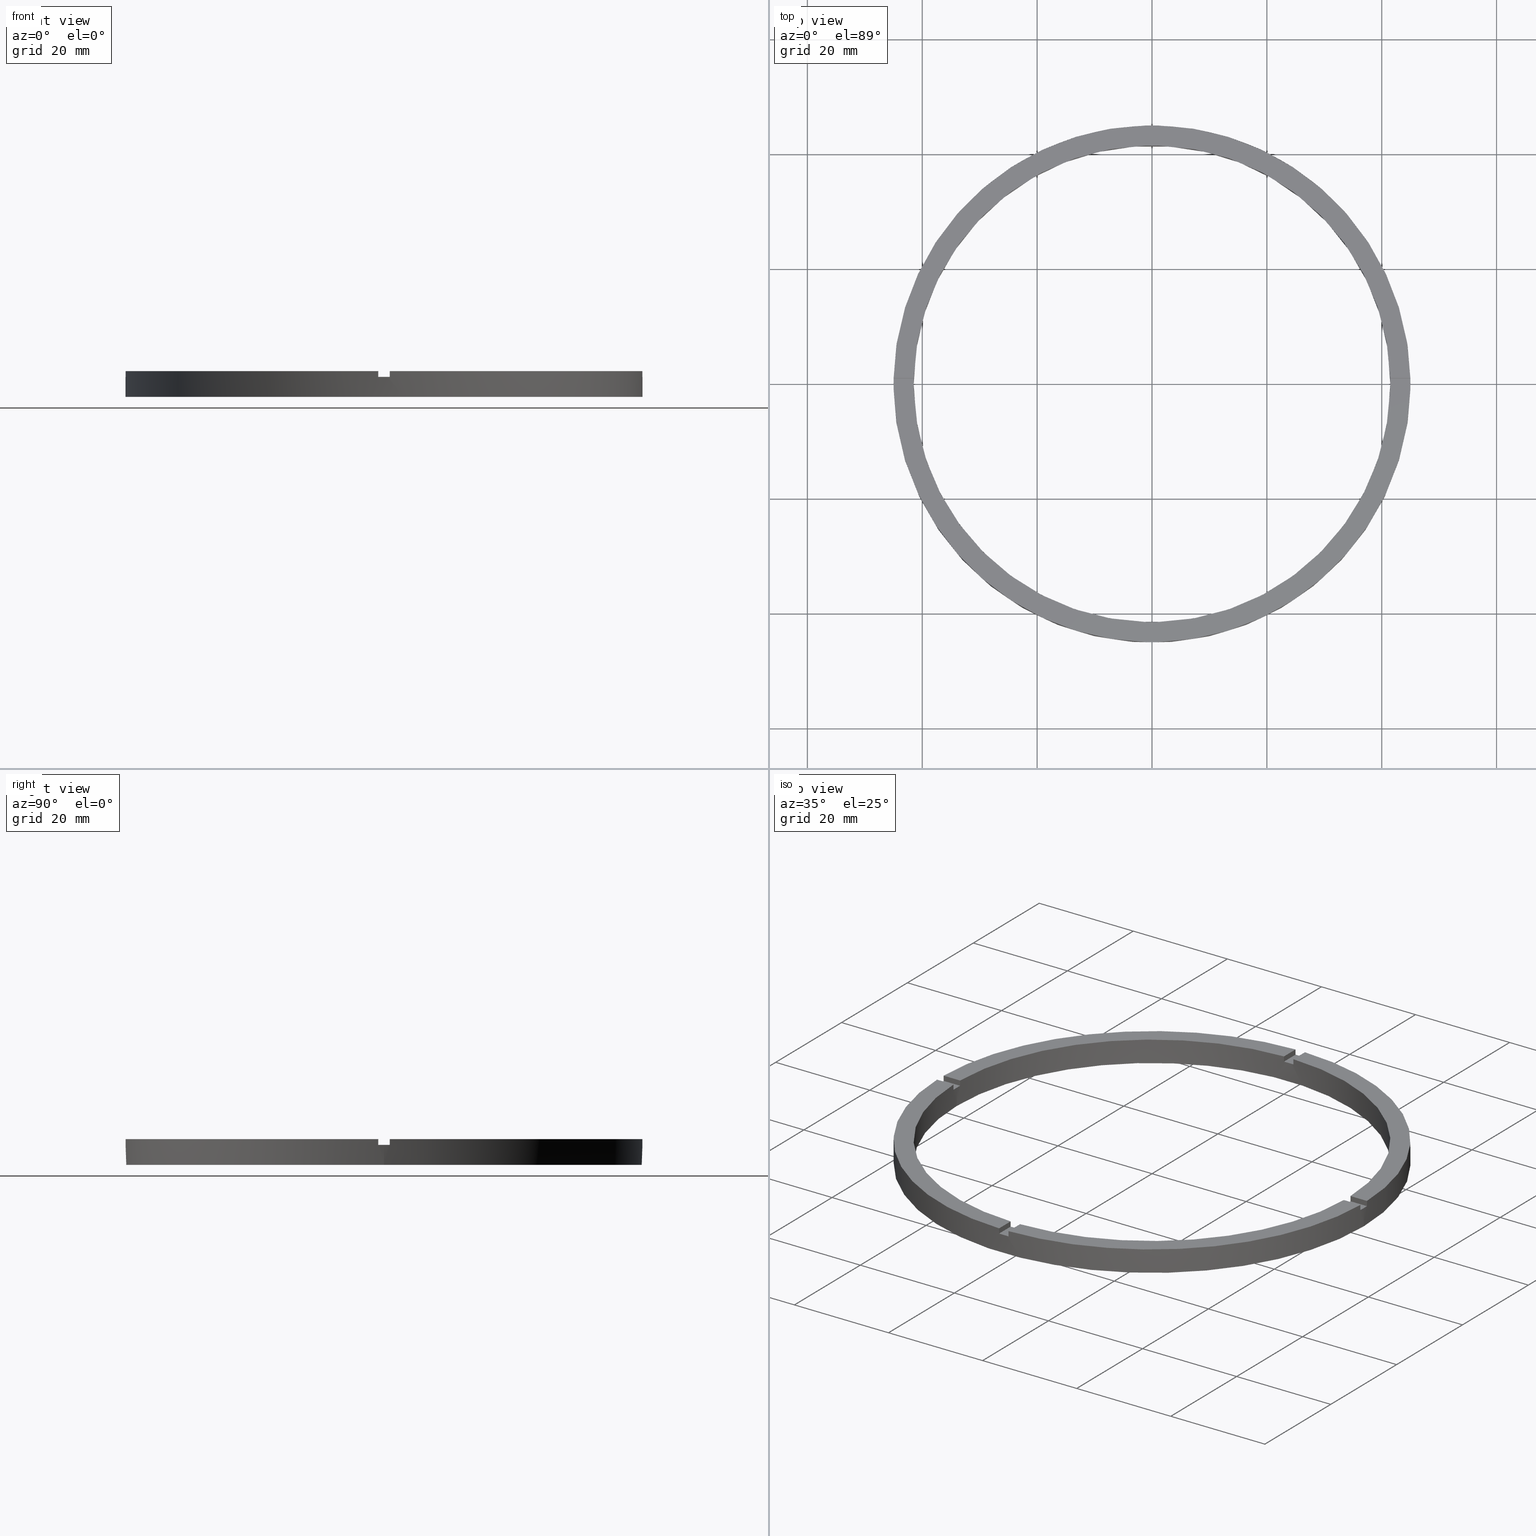
[diagram: canonical four-view strip — front | top / right | iso, engineering-drawing reading convention]
A machine part, canonical four-view strip (front | top / right | iso — engineering-drawing reading convention). The complete STEP part file that produces these views, byte-faithful:
ISO-10303-21;
HEADER;
FILE_DESCRIPTION (( 'STEP AP203' ),
    '1' );
FILE_NAME ('514184.step',
    '2024-12-26T02:45:46',
    ( 'MSI' ),
    ( '' ),
    'SwSTEP 2.0',
    'SolidWorks 2020',
    '' );
FILE_SCHEMA (( 'CONFIG_CONTROL_DESIGN' ));
ENDSEC;

DATA;
#1 = VECTOR ( 'NONE', #761, 1000.000000000000000 ) ;
#2 = LINE ( 'NONE', #626, #527 ) ;
#3 = CIRCLE ( 'NONE', #704, 45.00000000000000711 ) ;
#4 = DIRECTION ( 'NONE',  ( 1.000000000000000000, 0.000000000000000000, 0.000000000000000000 ) ) ;
#5 = EDGE_CURVE ( 'NONE', #388, #208, #227, .T. ) ;
#6 = VECTOR ( 'NONE', #169, 1000.000000000000000 ) ;
#7 = AXIS2_PLACEMENT_3D ( 'NONE', #112, #518, #592 ) ;
#8 = EDGE_CURVE ( 'NONE', #667, #736, #493, .T. ) ;
#9 = FACE_OUTER_BOUND ( 'NONE', #356, .T. ) ;
#10 = CARTESIAN_POINT ( 'NONE',  ( 0.9999999999999737987, 41.48795005781799716, 4.500000000000000000 ) ) ;
#11 = FACE_OUTER_BOUND ( 'NONE', #200, .T. ) ;
#12 = FACE_OUTER_BOUND ( 'NONE', #475, .T. ) ;
#13 = DIRECTION ( 'NONE',  ( 0.000000000000000000, 0.000000000000000000, 1.000000000000000000 ) ) ;
#14 = CIRCLE ( 'NONE', #603, 41.50000000000000000 ) ;
#15 = LINE ( 'NONE', #471, #270 ) ;
#16 = LINE ( 'NONE', #696, #530 ) ;
#17 = VECTOR ( 'NONE', #522, 1000.000000000000000 ) ;
#18 = AXIS2_PLACEMENT_3D ( 'NONE', #163, #230, #410 ) ;
#19 = DATE_AND_TIME ( #566, #553 ) ;
#20 = EDGE_CURVE ( 'NONE', #143, #121, #771, .T. ) ;
#21 = DIRECTION ( 'NONE',  ( -0.000000000000000000, 0.000000000000000000, 1.000000000000000000 ) ) ;
#22 = PERSON_AND_ORGANIZATION ( #149, #37 ) ;
#23 = EDGE_CURVE ( 'NONE', #179, #383, #744, .T. ) ;
#24 = DIRECTION ( 'NONE',  ( 1.000000000000000000, 0.000000000000000000, 0.000000000000000000 ) ) ;
#25 = LOCAL_TIME ( 10, 45, 46.00000000000000000, #543 ) ;
#26 = VECTOR ( 'NONE', #648, 1000.000000000000000 ) ;
#27 = APPROVAL_PERSON_ORGANIZATION ( #559, #671, #631 ) ;
#28 = DIRECTION ( 'NONE',  ( 0.000000000000000000, 0.000000000000000000, 1.000000000000000000 ) ) ;
#29 = VECTOR ( 'NONE', #780, 1000.000000000000000 ) ;
#30 = LINE ( 'NONE', #505, #33 ) ;
#31 = PRODUCT_DEFINITION_FORMATION_WITH_SPECIFIED_SOURCE ( '�κ�', '', #280, .NOT_KNOWN. ) ;
#32 = CARTESIAN_POINT ( 'NONE',  ( 0.000000000000000000, 0.000000000000000000, 3.499999999999999556 ) ) ;
#33 = VECTOR ( 'NONE', #146, 1000.000000000000000 ) ;
#34 = DIRECTION ( 'NONE',  ( -0.000000000000000000, -0.000000000000000000, -1.000000000000000000 ) ) ;
#35 = CALENDAR_DATE ( 2024, 26, 12 ) ;
#36 = CIRCLE ( 'NONE', #279, 45.00000000000000711 ) ;
#37 = ORGANIZATION ( 'δָ��', 'δָ��', '' ) ;
#38 = CARTESIAN_POINT ( 'NONE',  ( -41.48795005781799716, -1.000000000000029088, 4.500000000000000000 ) ) ;
#39 = FACE_OUTER_BOUND ( 'NONE', #85, .T. ) ;
#40 = PLANE ( 'NONE',  #444 ) ;
#41 = EDGE_CURVE ( 'NONE', #466, #688, #484, .T. ) ;
#42 = CARTESIAN_POINT ( 'NONE',  ( 0.000000000000000000, 0.000000000000000000, 0.000000000000000000 ) ) ;
#43 = DIRECTION ( 'NONE',  ( 1.000000000000000000, 0.000000000000000000, 0.000000000000000000 ) ) ;
#44 = PERSON_AND_ORGANIZATION ( #149, #37 ) ;
#45 = DIRECTION ( 'NONE',  ( -1.000000000000000000, -1.951563910473907735E-16, 0.000000000000000000 ) ) ;
#46 = APPROVAL_DATE_TIME ( #19, #671 ) ;
#47 = ADVANCED_FACE ( 'NONE', ( #225, #753 ), #73, .F. ) ;
#48 = VECTOR ( 'NONE', #374, 1000.000000000000000 ) ;
#49 = DATE_AND_TIME ( #318, #59 ) ;
#50 = DIRECTION ( 'NONE',  ( -0.000000000000000000, -0.000000000000000000, -1.000000000000000000 ) ) ;
#51 = CALENDAR_DATE ( 2024, 26, 12 ) ;
#52 = CARTESIAN_POINT ( 'NONE',  ( 0.000000000000000000, 0.000000000000000000, 4.500000000000000000 ) ) ;
#53 = AXIS2_PLACEMENT_3D ( 'NONE', #103, #289, #604 ) ;
#54 = EDGE_CURVE ( 'NONE', #162, #378, #236, .T. ) ;
#55 = CARTESIAN_POINT ( 'NONE',  ( -1.000000000000159428, -35.00000000000018474, 3.499999999999999556 ) ) ;
#56 = EDGE_CURVE ( 'NONE', #89, #218, #755, .T. ) ;
#57 = ADVANCED_FACE ( 'NONE', ( #222 ), #375, .T. ) ;
#58 = MECHANICAL_CONTEXT ( 'NONE', #145, 'mechanical' ) ;
#59 = LOCAL_TIME ( 10, 45, 46.00000000000000000, #61 ) ;
#60 = DIRECTION ( 'NONE',  ( 0.000000000000000000, 0.000000000000000000, 1.000000000000000000 ) ) ;
#61 = COORDINATED_UNIVERSAL_TIME_OFFSET ( 8, 0, .AHEAD. ) ;
#62 = CALENDAR_DATE ( 2024, 26, 12 ) ;
#63 = ADVANCED_FACE ( 'NONE', ( #763 ), #40, .T. ) ;
#64 = PERSON_AND_ORGANIZATION ( #149, #37 ) ;
#65 = DIRECTION ( 'NONE',  ( -0.000000000000000000, 0.000000000000000000, 1.000000000000000000 ) ) ;
#66 = EDGE_CURVE ( 'NONE', #369, #218, #231, .T. ) ;
#67 = VECTOR ( 'NONE', #406, 1000.000000000000000 ) ;
#68 = VECTOR ( 'NONE', #537, 1000.000000000000000 ) ;
#69 = DIRECTION ( 'NONE',  ( 1.000000000000000000, 0.000000000000000000, -0.000000000000000000 ) ) ;
#70 = VECTOR ( 'NONE', #302, 1000.000000000000000 ) ;
#71 = FACE_OUTER_BOUND ( 'NONE', #464, .T. ) ;
#72 = CARTESIAN_POINT ( 'NONE',  ( 34.99999999999999289, 0.9999999999998432365, 3.499999999999999556 ) ) ;
#73 = PLANE ( 'NONE',  #161 ) ;
#74 = EDGE_LOOP ( 'NONE', ( #123, #129, #653, #454 ) ) ;
#75 = CARTESIAN_POINT ( 'NONE',  ( 0.9999999999998414602, -41.48795005781800427, 4.500000000000000000 ) ) ;
#76 = VERTEX_POINT ( 'NONE', #78 ) ;
#77 = DIRECTION ( 'NONE',  ( -0.000000000000000000, -0.000000000000000000, -1.000000000000000000 ) ) ;
#78 = CARTESIAN_POINT ( 'NONE',  ( -1.000000000000026201, 41.48795005781799716, 4.500000000000000000 ) ) ;
#79 = DIRECTION ( 'NONE',  ( 0.000000000000000000, 0.000000000000000000, 1.000000000000000000 ) ) ;
#80 = DIRECTION ( 'NONE',  ( -0.000000000000000000, -0.000000000000000000, -1.000000000000000000 ) ) ;
#81 = AXIS2_PLACEMENT_3D ( 'NONE', #490, #562, #24 ) ;
#82 = EDGE_CURVE ( 'NONE', #162, #187, #243, .T. ) ;
#83 = CARTESIAN_POINT ( 'NONE',  ( -41.50000000000000000, 0.000000000000000000, 4.500000000000000000 ) ) ;
#84 = DIRECTION ( 'NONE',  ( -0.000000000000000000, -0.000000000000000000, -1.000000000000000000 ) ) ;
#85 = EDGE_LOOP ( 'NONE', ( #650, #655, #448, #731 ) ) ;
#86 = CC_DESIGN_PERSON_AND_ORGANIZATION_ASSIGNMENT ( #550, #281, ( #342 ) ) ;
#87 = DIRECTION ( 'NONE',  ( -0.000000000000000000, -0.000000000000000000, -1.000000000000000000 ) ) ;
#88 = EDGE_CURVE ( 'NONE', #443, #727, #483, .T. ) ;
#89 = VERTEX_POINT ( 'NONE', #328 ) ;
#90 = CARTESIAN_POINT ( 'NONE',  ( -35.00000000000019185, 0.9999999999999720224, 3.499999999999999556 ) ) ;
#91 = CARTESIAN_POINT ( 'NONE',  ( 0.000000000000000000, 0.000000000000000000, 4.500000000000000000 ) ) ;
#92 = ORIENTED_EDGE ( 'NONE', *, *, #732, .F. ) ;
#93 = PLANE ( 'NONE',  #219 ) ;
#94 = ORIENTED_EDGE ( 'NONE', *, *, #707, .F. ) ;
#95 = CARTESIAN_POINT ( 'NONE',  ( -35.00000000000019185, 0.9999999999999720224, 4.500000000000000000 ) ) ;
#96 = EDGE_CURVE ( 'NONE', #718, #206, #482, .T. ) ;
#97 = ORIENTED_EDGE ( 'NONE', *, *, #254, .T. ) ;
#98 = CARTESIAN_POINT ( 'NONE',  ( 44.98888751680797071, -1.000000000000156097, 3.499999999999999556 ) ) ;
#99 = ORIENTED_EDGE ( 'NONE', *, *, #147, .F. ) ;
#100 = ORIENTED_EDGE ( 'NONE', *, *, #293, .F. ) ;
#101 = APPROVAL_STATUS ( 'not_yet_approved' ) ;
#102 = AXIS2_PLACEMENT_3D ( 'NONE', #776, #665, #339 ) ;
#103 = CARTESIAN_POINT ( 'NONE',  ( 0.000000000000000000, 0.000000000000000000, 4.500000000000000000 ) ) ;
#104 = CARTESIAN_POINT ( 'NONE',  ( -1.000000000000158096, -44.98888751680797071, 4.500000000000000000 ) ) ;
#105 = EDGE_CURVE ( 'NONE', #718, #443, #504, .T. ) ;
#106 = CARTESIAN_POINT ( 'NONE',  ( 0.000000000000000000, 0.000000000000000000, 3.499999999999999556 ) ) ;
#107 = PLANE ( 'NONE',  #18 ) ;
#108 = ADVANCED_FACE ( 'NONE', ( #11 ), #502, .T. ) ;
#109 = AXIS2_PLACEMENT_3D ( 'NONE', #221, #290, #624 ) ;
#110 = CARTESIAN_POINT ( 'NONE',  ( 0.9999999999998414602, -41.48795005781800427, 4.500000000000000000 ) ) ;
#111 = EDGE_CURVE ( 'NONE', #466, #214, #542, .T. ) ;
#112 = CARTESIAN_POINT ( 'NONE',  ( 0.000000000000000000, 0.000000000000000000, 4.500000000000000000 ) ) ;
#113 = EDGE_CURVE ( 'NONE', #616, #634, #265, .T. ) ;
#114 = ORIENTED_EDGE ( 'NONE', *, *, #675, .T. ) ;
#115 = ORIENTED_EDGE ( 'NONE', *, *, #330, .T. ) ;
#116 = CARTESIAN_POINT ( 'NONE',  ( 41.48795005781799006, -1.000000000000156319, 4.500000000000000000 ) ) ;
#117 = ORIENTED_EDGE ( 'NONE', *, *, #113, .T. ) ;
#118 = CARTESIAN_POINT ( 'NONE',  ( 0.000000000000000000, 0.000000000000000000, 3.499999999999999556 ) ) ;
#119 = ORIENTED_EDGE ( 'NONE', *, *, #586, .F. ) ;
#120 = ORIENTED_EDGE ( 'NONE', *, *, #549, .T. ) ;
#121 = VERTEX_POINT ( 'NONE', #343 ) ;
#122 = VERTEX_POINT ( 'NONE', #702 ) ;
#123 = ORIENTED_EDGE ( 'NONE', *, *, #549, .F. ) ;
#124 = CARTESIAN_POINT ( 'NONE',  ( 0.000000000000000000, 0.000000000000000000, 4.500000000000000000 ) ) ;
#125 = ORIENTED_EDGE ( 'NONE', *, *, #586, .T. ) ;
#126 = DIRECTION ( 'NONE',  ( 0.000000000000000000, 1.000000000000000000, 0.000000000000000000 ) ) ;
#127 = ORIENTED_EDGE ( 'NONE', *, *, #511, .F. ) ;
#128 = ORIENTED_EDGE ( 'NONE', *, *, #422, .F. ) ;
#129 = ORIENTED_EDGE ( 'NONE', *, *, #686, .T. ) ;
#130 = AXIS2_PLACEMENT_3D ( 'NONE', #625, #435, #734 ) ;
#131 = ORIENTED_EDGE ( 'NONE', *, *, #415, .T. ) ;
#132 = EDGE_CURVE ( 'NONE', #724, #165, #255, .T. ) ;
#133 = ORIENTED_EDGE ( 'NONE', *, *, #111, .F. ) ;
#134 = DIRECTION ( 'NONE',  ( -0.000000000000000000, -0.000000000000000000, -1.000000000000000000 ) ) ;
#135 = ORIENTED_EDGE ( 'NONE', *, *, #205, .T. ) ;
#136 = ORIENTED_EDGE ( 'NONE', *, *, #173, .T. ) ;
#137 = DIRECTION ( 'NONE',  ( 0.000000000000000000, 0.000000000000000000, 1.000000000000000000 ) ) ;
#138 = AXIS2_PLACEMENT_3D ( 'NONE', #552, #80, #545 ) ;
#139 = EDGE_CURVE ( 'NONE', #122, #466, #544, .T. ) ;
#140 = APPROVAL ( #101, 'δָ��' ) ;
#141 = CARTESIAN_POINT ( 'NONE',  ( 0.9999999999998406830, -35.00000000000018474, 3.499999999999999556 ) ) ;
#142 = CARTESIAN_POINT ( 'NONE',  ( 34.99999999999999289, 0.9999999999998432365, 4.500000000000000000 ) ) ;
#143 = VERTEX_POINT ( 'NONE', #752 ) ;
#144 = AXIS2_PLACEMENT_3D ( 'NONE', #52, #395, #150 ) ;
#145 = APPLICATION_CONTEXT ( 'configuration controlled 3d designs of mechanical parts and assemblies' ) ;
#146 = DIRECTION ( 'NONE',  ( -0.000000000000000000, -0.000000000000000000, -1.000000000000000000 ) ) ;
#147 = EDGE_CURVE ( 'NONE', #155, #214, #267, .T. ) ;
#148 = CARTESIAN_POINT ( 'NONE',  ( 0.000000000000000000, 0.000000000000000000, 0.000000000000000000 ) ) ;
#149 = PERSON ( 'δָ��', 'δָ��', 'δָ��', ('δָ��'), ('δָ��'), ('δָ��') ) ;
#150 = DIRECTION ( 'NONE',  ( 1.000000000000000000, 0.000000000000000000, 0.000000000000000000 ) ) ;
#151 = ORIENTED_EDGE ( 'NONE', *, *, #599, .T. ) ;
#152 = AXIS2_PLACEMENT_3D ( 'NONE', #572, #386, #711 ) ;
#153 = PLANE ( 'NONE',  #109 ) ;
#154 = DIRECTION ( 'NONE',  ( 1.301042606982605074E-16, -1.000000000000000000, 0.000000000000000000 ) ) ;
#155 = VERTEX_POINT ( 'NONE', #594 ) ;
#156 = ORIENTED_EDGE ( 'NONE', *, *, #164, .F. ) ;
#157 = ORIENTED_EDGE ( 'NONE', *, *, #361, .F. ) ;
#158 = ADVANCED_FACE ( 'NONE', ( #258 ), #232, .F. ) ;
#159 = EDGE_LOOP ( 'NONE', ( #191, #434, #706, #699 ) ) ;
#160 = CARTESIAN_POINT ( 'NONE',  ( 41.48795005781800427, 0.9999999999998436806, 3.499999999999999556 ) ) ;
#161 = AXIS2_PLACEMENT_3D ( 'NONE', #248, #491, #317 ) ;
#162 = VERTEX_POINT ( 'NONE', #298 ) ;
#163 = CARTESIAN_POINT ( 'NONE',  ( 34.99999999999999289, -1.000000000000156763, 3.499999999999999556 ) ) ;
#164 = EDGE_CURVE ( 'NONE', #768, #76, #517, .T. ) ;
#165 = VERTEX_POINT ( 'NONE', #104 ) ;
#166 = ORIENTED_EDGE ( 'NONE', *, *, #96, .T. ) ;
#167 = CARTESIAN_POINT ( 'NONE',  ( 0.000000000000000000, 0.000000000000000000, 4.500000000000000000 ) ) ;
#168 = CLOSED_SHELL ( 'NONE', ( #411, #591, #534, #602, #108, #700, #47, #282, #229, #452, #468, #540, #348, #779, #57, #769, #687, #239, #662, #158, #63 ) ) ;
#169 = DIRECTION ( 'NONE',  ( 1.000000000000000000, 6.505213034913025371E-17, 0.000000000000000000 ) ) ;
#170 = ORIENTED_EDGE ( 'NONE', *, *, #415, .F. ) ;
#171 = ORIENTED_EDGE ( 'NONE', *, *, #605, .T. ) ;
#172 = ORIENTED_EDGE ( 'NONE', *, *, #105, .T. ) ;
#173 = EDGE_CURVE ( 'NONE', #388, #681, #261, .T. ) ;
#174 = ORIENTED_EDGE ( 'NONE', *, *, #470, .T. ) ;
#175 = DIRECTION ( 'NONE',  ( -1.000000000000000000, 0.000000000000000000, 0.000000000000000000 ) ) ;
#176 = AXIS2_PLACEMENT_3D ( 'NONE', #402, #457, #716 ) ;
#177 = EDGE_CURVE ( 'NONE', #122, #667, #14, .T. ) ;
#178 = EDGE_LOOP ( 'NONE', ( #128, #698 ) ) ;
#179 = VERTEX_POINT ( 'NONE', #226 ) ;
#180 = ORIENTED_EDGE ( 'NONE', *, *, #20, .F. ) ;
#181 = ORIENTED_EDGE ( 'NONE', *, *, #220, .F. ) ;
#182 = PLANE ( 'NONE',  #333 ) ;
#183 = ORIENTED_EDGE ( 'NONE', *, *, #605, .F. ) ;
#184 = ORIENTED_EDGE ( 'NONE', *, *, #567, .T. ) ;
#185 = AXIS2_PLACEMENT_3D ( 'NONE', #42, #292, #344 ) ;
#186 = ORIENTED_EDGE ( 'NONE', *, *, #56, .T. ) ;
#187 = VERTEX_POINT ( 'NONE', #570 ) ;
#188 = DIRECTION ( 'NONE',  ( 0.000000000000000000, 1.000000000000000000, 0.000000000000000000 ) ) ;
#189 = ORIENTED_EDGE ( 'NONE', *, *, #23, .F. ) ;
#190 = CARTESIAN_POINT ( 'NONE',  ( 0.000000000000000000, 0.000000000000000000, 3.499999999999999556 ) ) ;
#191 = ORIENTED_EDGE ( 'NONE', *, *, #293, .T. ) ;
#192 = ORIENTED_EDGE ( 'NONE', *, *, #41, .T. ) ;
#193 = CARTESIAN_POINT ( 'NONE',  ( 0.000000000000000000, 0.000000000000000000, 0.000000000000000000 ) ) ;
#194 = ORIENTED_EDGE ( 'NONE', *, *, #381, .T. ) ;
#195 = CARTESIAN_POINT ( 'NONE',  ( 0.000000000000000000, 0.000000000000000000, 4.500000000000000000 ) ) ;
#196 = ORIENTED_EDGE ( 'NONE', *, *, #639, .T. ) ;
#197 = ORIENTED_EDGE ( 'NONE', *, *, #751, .T. ) ;
#198 = ORIENTED_EDGE ( 'NONE', *, *, #220, .T. ) ;
#199 = ORIENTED_EDGE ( 'NONE', *, *, #742, .T. ) ;
#200 = EDGE_LOOP ( 'NONE', ( #419, #674, #100, #447 ) ) ;
#201 = EDGE_LOOP ( 'NONE', ( #171, #738, #664, #136 ) ) ;
#202 = ORIENTED_EDGE ( 'NONE', *, *, #675, .F. ) ;
#203 = DIRECTION ( 'NONE',  ( -1.000000000000000000, -1.301042606982605074E-16, 0.000000000000000000 ) ) ;
#204 = ORIENTED_EDGE ( 'NONE', *, *, #8, .T. ) ;
#205 = EDGE_CURVE ( 'NONE', #405, #676, #2, .T. ) ;
#206 = VERTEX_POINT ( 'NONE', #160 ) ;
#207 = DIRECTION ( 'NONE',  ( -1.951563910473907735E-16, 1.000000000000000000, 0.000000000000000000 ) ) ;
#208 = VERTEX_POINT ( 'NONE', #438 ) ;
#209 = DIRECTION ( 'NONE',  ( 0.000000000000000000, 0.000000000000000000, 1.000000000000000000 ) ) ;
#210 = ORIENTED_EDGE ( 'NONE', *, *, #679, .F. ) ;
#211 = PERSON_AND_ORGANIZATION_ROLE ( 'design_owner' ) ;
#212 = EDGE_LOOP ( 'NONE', ( #192, #197, #695, #440, #382, #379 ) ) ;
#213 = CARTESIAN_POINT ( 'NONE',  ( 34.99999999999999289, -1.000000000000156763, 4.500000000000000000 ) ) ;
#214 = VERTEX_POINT ( 'NONE', #347 ) ;
#215 = DIRECTION ( 'NONE',  ( 0.000000000000000000, 0.000000000000000000, 1.000000000000000000 ) ) ;
#216 = EDGE_CURVE ( 'NONE', #616, #208, #532, .T. ) ;
#217 = APPLICATION_CONTEXT ( 'configuration controlled 3d designs of mechanical parts and assemblies' ) ;
#218 = VERTEX_POINT ( 'NONE', #337 ) ;
#219 = AXIS2_PLACEMENT_3D ( 'NONE', #589, #757, #555 ) ;
#220 = EDGE_CURVE ( 'NONE', #76, #378, #30, .T. ) ;
#221 = CARTESIAN_POINT ( 'NONE',  ( 34.99999999999999289, 0.9999999999998432365, 3.499999999999999556 ) ) ;
#222 = FACE_OUTER_BOUND ( 'NONE', #201, .T. ) ;
#223 = CARTESIAN_POINT ( 'NONE',  ( 0.000000000000000000, 0.000000000000000000, 3.499999999999999556 ) ) ;
#224 = CC_DESIGN_DATE_AND_TIME_ASSIGNMENT ( #49, #693, ( #269 ) ) ;
#225 = FACE_OUTER_BOUND ( 'NONE', #178, .T. ) ;
#226 = CARTESIAN_POINT ( 'NONE',  ( 45.00000000000000711, 5.510910596163090344E-15, 3.499999999999999556 ) ) ;
#227 = CIRCLE ( 'NONE', #392, 41.50000000000000000 ) ;
#228 = DIRECTION ( 'NONE',  ( 1.000000000000000000, 6.505213034913025371E-17, 0.000000000000000000 ) ) ;
#229 = ADVANCED_FACE ( 'NONE', ( #287 ), #294, .F. ) ;
#230 = DIRECTION ( 'NONE',  ( 6.505213034913025371E-17, -1.000000000000000000, 0.000000000000000000 ) ) ;
#231 = CIRCLE ( 'NONE', #130, 41.50000000000000000 ) ;
#232 = PLANE ( 'NONE',  #691 ) ;
#233 = VECTOR ( 'NONE', #607, 1000.000000000000000 ) ;
#234 = CARTESIAN_POINT ( 'NONE',  ( 0.000000000000000000, 0.000000000000000000, 4.500000000000000000 ) ) ;
#235 = LINE ( 'NONE', #72, #777 ) ;
#236 = CIRCLE ( 'NONE', #340, 41.50000000000000000 ) ;
#237 = CARTESIAN_POINT ( 'NONE',  ( -45.00000000000000711, 0.000000000000000000, 0.000000000000000000 ) ) ;
#238 = CIRCLE ( 'NONE', #678, 45.00000000000000711 ) ;
#239 = ADVANCED_FACE ( 'NONE', ( #547 ), #449, .T. ) ;
#240 = FACE_OUTER_BOUND ( 'NONE', #652, .T. ) ;
#241 = LINE ( 'NONE', #606, #523 ) ;
#242 = LINE ( 'NONE', #393, #498 ) ;
#243 = LINE ( 'NONE', #429, #488 ) ;
#244 = DIRECTION ( 'NONE',  ( 0.000000000000000000, 0.000000000000000000, 1.000000000000000000 ) ) ;
#245 = AXIS2_PLACEMENT_3D ( 'NONE', #539, #84, #389 ) ;
#246 = LINE ( 'NONE', #142, #503 ) ;
#247 = CARTESIAN_POINT ( 'NONE',  ( 41.48795005781799006, -1.000000000000156319, 3.499999999999999556 ) ) ;
#248 = CARTESIAN_POINT ( 'NONE',  ( 0.000000000000000000, 0.000000000000000000, 0.000000000000000000 ) ) ;
#249 = LINE ( 'NONE', #83, #262 ) ;
#250 = FACE_OUTER_BOUND ( 'NONE', #461, .T. ) ;
#251 = DIRECTION ( 'NONE',  ( 1.000000000000000000, 0.000000000000000000, 0.000000000000000000 ) ) ;
#252 = FACE_OUTER_BOUND ( 'NONE', #159, .T. ) ;
#253 = CYLINDRICAL_SURFACE ( 'NONE', #138, 41.50000000000000000 ) ;
#254 = EDGE_CURVE ( 'NONE', #445, #727, #36, .T. ) ;
#255 = LINE ( 'NONE', #783, #276 ) ;
#256 = CARTESIAN_POINT ( 'NONE',  ( 44.98888751680797782, 0.9999999999998439026, 4.500000000000000000 ) ) ;
#257 = CARTESIAN_POINT ( 'NONE',  ( 0.9999999999999737987, 35.00000000000000000, 4.500000000000000000 ) ) ;
#258 = FACE_OUTER_BOUND ( 'NONE', #717, .T. ) ;
#259 = AXIS2_PLACEMENT_3D ( 'NONE', #743, #264, #285 ) ;
#260 = FACE_OUTER_BOUND ( 'NONE', #635, .T. ) ;
#261 = LINE ( 'NONE', #55, #520 ) ;
#262 = VECTOR ( 'NONE', #77, 1000.000000000000000 ) ;
#263 = CIRCLE ( 'NONE', #396, 45.00000000000000711 ) ;
#264 = DIRECTION ( 'NONE',  ( 1.951563910473907735E-16, -1.000000000000000000, 0.000000000000000000 ) ) ;
#265 = CIRCLE ( 'NONE', #102, 41.50000000000000000 ) ;
#266 = VECTOR ( 'NONE', #341, 1000.000000000000000 ) ;
#267 = LINE ( 'NONE', #95, #26 ) ;
#268 = CIRCLE ( 'NONE', #460, 45.00000000000000711 ) ;
#269 = SECURITY_CLASSIFICATION ( '', '', #640 ) ;
#270 = VECTOR ( 'NONE', #554, 1000.000000000000000 ) ;
#271 = EDGE_CURVE ( 'NONE', #424, #736, #560, .T. ) ;
#272 = CARTESIAN_POINT ( 'NONE',  ( 0.000000000000000000, 0.000000000000000000, 3.499999999999999556 ) ) ;
#273 = CIRCLE ( 'NONE', #610, 41.50000000000000000 ) ;
#274 = CARTESIAN_POINT ( 'NONE',  ( 0.000000000000000000, 0.000000000000000000, 4.500000000000000000 ) ) ;
#275 = COORDINATED_UNIVERSAL_TIME_OFFSET ( 8, 0, .AHEAD. ) ;
#276 = VECTOR ( 'NONE', #154, 1000.000000000000000 ) ;
#277 = DIRECTION ( 'NONE',  ( 1.000000000000000000, 0.000000000000000000, 0.000000000000000000 ) ) ;
#278 = APPROVAL_PERSON_ORGANIZATION ( #22, #479, #531 ) ;
#279 = AXIS2_PLACEMENT_3D ( 'NONE', #167, #137, #747 ) ;
#280 = PRODUCT ( '514184', '514184', '', ( #58 ) ) ;
#281 = PERSON_AND_ORGANIZATION_ROLE ( 'creator' ) ;
#282 = ADVANCED_FACE ( 'NONE', ( #296 ), #494, .T. ) ;
#283 = EDGE_CURVE ( 'NONE', #445, #718, #246, .T. ) ;
#284 = DIRECTION ( 'NONE',  ( 1.000000000000000000, 0.000000000000000000, 0.000000000000000000 ) ) ;
#285 = DIRECTION ( 'NONE',  ( 1.000000000000000000, 1.951563910473907735E-16, 0.000000000000000000 ) ) ;
#286 = DIRECTION ( 'NONE',  ( -1.301042606982605074E-16, 1.000000000000000000, -0.000000000000000000 ) ) ;
#287 = FACE_OUTER_BOUND ( 'NONE', #613, .T. ) ;
#288 =( NAMED_UNIT ( * ) PLANE_ANGLE_UNIT ( ) SI_UNIT ( $, .RADIAN. ) );
#289 = DIRECTION ( 'NONE',  ( 0.000000000000000000, 0.000000000000000000, 1.000000000000000000 ) ) ;
#290 = DIRECTION ( 'NONE',  ( -6.505213034913025371E-17, 1.000000000000000000, 0.000000000000000000 ) ) ;
#291 = AXIS2_PLACEMENT_3D ( 'NONE', #428, #481, #487 ) ;
#292 = DIRECTION ( 'NONE',  ( 0.000000000000000000, 0.000000000000000000, 1.000000000000000000 ) ) ;
#293 = EDGE_CURVE ( 'NONE', #143, #616, #506, .T. ) ;
#294 = CYLINDRICAL_SURFACE ( 'NONE', #245, 41.50000000000000000 ) ;
#295 = DIRECTION ( 'NONE',  ( -1.000000000000000000, -6.505213034913025371E-17, -0.000000000000000000 ) ) ;
#296 = FACE_OUTER_BOUND ( 'NONE', #715, .T. ) ;
#297 = CARTESIAN_POINT ( 'NONE',  ( 41.48795005781799006, -1.000000000000156319, 4.500000000000000000 ) ) ;
#298 = CARTESIAN_POINT ( 'NONE',  ( 0.9999999999999737987, 41.48795005781799716, 3.499999999999999556 ) ) ;
#299 = DIRECTION ( 'NONE',  ( -0.000000000000000000, -0.000000000000000000, -1.000000000000000000 ) ) ;
#300 = DIRECTION ( 'NONE',  ( 0.000000000000000000, 0.000000000000000000, 1.000000000000000000 ) ) ;
#301 = AXIS2_PLACEMENT_3D ( 'NONE', #91, #209, #277 ) ;
#302 = DIRECTION ( 'NONE',  ( 0.000000000000000000, 0.000000000000000000, 1.000000000000000000 ) ) ;
#303 = CARTESIAN_POINT ( 'NONE',  ( 0.9999999999999737987, 35.00000000000000000, 3.499999999999999556 ) ) ;
#304 = CARTESIAN_POINT ( 'NONE',  ( -1.000000000000026201, 41.48795005781799716, 3.499999999999999556 ) ) ;
#305 = DATE_AND_TIME ( #51, #25 ) ;
#306 = CIRCLE ( 'NONE', #430, 45.00000000000000711 ) ;
#307 = SHAPE_DEFINITION_REPRESENTATION ( #423, #357 ) ;
#308 = PERSON_AND_ORGANIZATION ( #149, #37 ) ;
#309 = CARTESIAN_POINT ( 'NONE',  ( 0.000000000000000000, 0.000000000000000000, 0.000000000000000000 ) ) ;
#310 = DIRECTION ( 'NONE',  ( 1.000000000000000000, 0.000000000000000000, 0.000000000000000000 ) ) ;
#311 = LINE ( 'NONE', #501, #48 ) ;
#312 = CC_DESIGN_APPROVAL ( #479, ( #31 ) ) ;
#313 = FACE_OUTER_BOUND ( 'NONE', #710, .T. ) ;
#314 = APPROVAL_PERSON_ORGANIZATION ( #575, #140, #756 ) ;
#315 = CARTESIAN_POINT ( 'NONE',  ( -1.000000000000026201, 35.00000000000000000, 3.499999999999999556 ) ) ;
#316 = APPROVAL_DATE_TIME ( #305, #479 ) ;
#317 = DIRECTION ( 'NONE',  ( 1.000000000000000000, 0.000000000000000000, -0.000000000000000000 ) ) ;
#318 = CALENDAR_DATE ( 2024, 26, 12 ) ;
#319 = PERSON_AND_ORGANIZATION ( #149, #37 ) ;
#320 = AXIS2_PLACEMENT_3D ( 'NONE', #272, #619, #332 ) ;
#321 = FACE_OUTER_BOUND ( 'NONE', #509, .T. ) ;
#322 = CARTESIAN_POINT ( 'NONE',  ( 41.48795005781800427, 0.9999999999998436806, 4.500000000000000000 ) ) ;
#323 = LINE ( 'NONE', #465, #68 ) ;
#324 = LINE ( 'NONE', #345, #67 ) ;
#325 = FACE_OUTER_BOUND ( 'NONE', #74, .T. ) ;
#326 = CARTESIAN_POINT ( 'NONE',  ( -41.50000000000000000, 0.000000000000000000, 0.000000000000000000 ) ) ;
#327 = VECTOR ( 'NONE', #13, 1000.000000000000000 ) ;
#328 = CARTESIAN_POINT ( 'NONE',  ( 41.50000000000000000, 5.082284216461515748E-15, 3.499999999999999556 ) ) ;
#329 = CARTESIAN_POINT ( 'NONE',  ( 44.98888751680797782, 0.9999999999998439026, 3.499999999999999556 ) ) ;
#330 = EDGE_CURVE ( 'NONE', #424, #724, #770, .T. ) ;
#331 = CARTESIAN_POINT ( 'NONE',  ( -1.000000000000026201, 44.98888751680797071, 3.499999999999999556 ) ) ;
#332 = DIRECTION ( 'NONE',  ( 1.000000000000000000, 0.000000000000000000, 0.000000000000000000 ) ) ;
#333 = AXIS2_PLACEMENT_3D ( 'NONE', #315, #175, #244 ) ;
#334 = EDGE_CURVE ( 'NONE', #476, #179, #3, .T. ) ;
#335 = CARTESIAN_POINT ( 'NONE',  ( -1.000000000000158540, -41.48795005781799006, 4.500000000000000000 ) ) ;
#336 = PERSON_AND_ORGANIZATION_ROLE ( 'design_supplier' ) ;
#337 = CARTESIAN_POINT ( 'NONE',  ( 41.50000000000000000, 5.082284216461515748E-15, 0.000000000000000000 ) ) ;
#338 = CARTESIAN_POINT ( 'NONE',  ( 0.9999999999999737987, 41.48795005781799716, 4.500000000000000000 ) ) ;
#339 = DIRECTION ( 'NONE',  ( 1.000000000000000000, 0.000000000000000000, 0.000000000000000000 ) ) ;
#340 = AXIS2_PLACEMENT_3D ( 'NONE', #118, #358, #310 ) ;
#341 = DIRECTION ( 'NONE',  ( -0.000000000000000000, -1.000000000000000000, -0.000000000000000000 ) ) ;
#342 = PRODUCT_DEFINITION ( 'δ֪', '', #31, #355 ) ;
#343 = CARTESIAN_POINT ( 'NONE',  ( 44.98888751680797071, -1.000000000000156097, 4.500000000000000000 ) ) ;
#344 = DIRECTION ( 'NONE',  ( 1.000000000000000000, 0.000000000000000000, 0.000000000000000000 ) ) ;
#345 = CARTESIAN_POINT ( 'NONE',  ( 0.9999999999999737987, 44.98888751680797071, 4.500000000000000000 ) ) ;
#346 = DIRECTION ( 'NONE',  ( 1.301042606982605074E-16, -1.000000000000000000, 0.000000000000000000 ) ) ;
#347 = CARTESIAN_POINT ( 'NONE',  ( -44.98888751680797071, 0.9999999999999703570, 4.500000000000000000 ) ) ;
#348 = ADVANCED_FACE ( 'NONE', ( #252 ), #93, .F. ) ;
#349 = ORIENTED_EDGE ( 'NONE', *, *, #82, .T. ) ;
#350 = MANIFOLD_SOLID_BREP ( '�г�-����1', #168 ) ;
#351 = CARTESIAN_POINT ( 'NONE',  ( -35.00000000000019185, -1.000000000000027978, 4.500000000000000000 ) ) ;
#352 = ORIENTED_EDGE ( 'NONE', *, *, #105, .F. ) ;
#353 = CARTESIAN_POINT ( 'NONE',  ( -41.50000000000000000, 0.000000000000000000, 3.499999999999999556 ) ) ;
#354 = DIRECTION ( 'NONE',  ( 0.000000000000000000, 0.000000000000000000, -1.000000000000000000 ) ) ;
#355 = DESIGN_CONTEXT ( 'detailed design', #217, 'design' ) ;
#356 = EDGE_LOOP ( 'NONE', ( #370, #409, #690, #119, #705, #666, #94, #151, #431, #114, #647, #416 ) ) ;
#357 = ADVANCED_BREP_SHAPE_REPRESENTATION ( '514184', ( #350, #185 ), #654 ) ;
#358 = DIRECTION ( 'NONE',  ( 0.000000000000000000, -0.000000000000000000, 1.000000000000000000 ) ) ;
#359 = ORIENTED_EDGE ( 'NONE', *, *, #54, .F. ) ;
#360 = AXIS2_PLACEMENT_3D ( 'NONE', #223, #60, #723 ) ;
#361 = EDGE_CURVE ( 'NONE', #667, #369, #249, .T. ) ;
#362 = CARTESIAN_POINT ( 'NONE',  ( -41.48795005781799716, -1.000000000000029088, 4.500000000000000000 ) ) ;
#363 = DIRECTION ( 'NONE',  ( 0.000000000000000000, 0.000000000000000000, 1.000000000000000000 ) ) ;
#364 = CARTESIAN_POINT ( 'NONE',  ( 41.50000000000000000, 5.082284216461515748E-15, 4.500000000000000000 ) ) ;
#365 = CARTESIAN_POINT ( 'NONE',  ( 0.000000000000000000, 0.000000000000000000, 3.499999999999999556 ) ) ;
#366 = CARTESIAN_POINT ( 'NONE',  ( 45.00000000000000711, 5.510910596163090344E-15, 0.000000000000000000 ) ) ;
#367 = AXIS2_PLACEMENT_3D ( 'NONE', #274, #581, #628 ) ;
#368 = ORIENTED_EDGE ( 'NONE', *, *, #132, .F. ) ;
#369 = VERTEX_POINT ( 'NONE', #326 ) ;
#370 = ORIENTED_EDGE ( 'NONE', *, *, #742, .F. ) ;
#371 = UNCERTAINTY_MEASURE_WITH_UNIT (LENGTH_MEASURE( 1.000000000000000082E-05 ), #651, 'distance_accuracy_value', 'NONE');
#372 = CARTESIAN_POINT ( 'NONE',  ( 0.000000000000000000, 0.000000000000000000, 3.499999999999999556 ) ) ;
#373 = ORIENTED_EDGE ( 'NONE', *, *, #422, .T. ) ;
#374 = DIRECTION ( 'NONE',  ( 1.000000000000000000, 1.951563910473907735E-16, -0.000000000000000000 ) ) ;
#375 = PLANE ( 'NONE',  #320 ) ;
#376 = ORIENTED_EDGE ( 'NONE', *, *, #499, .T. ) ;
#377 = ORIENTED_EDGE ( 'NONE', *, *, #599, .F. ) ;
#378 = VERTEX_POINT ( 'NONE', #304 ) ;
#379 = ORIENTED_EDGE ( 'NONE', *, *, #139, .T. ) ;
#380 = ORIENTED_EDGE ( 'NONE', *, *, #56, .F. ) ;
#381 = EDGE_CURVE ( 'NONE', #405, #165, #781, .T. ) ;
#382 = ORIENTED_EDGE ( 'NONE', *, *, #177, .F. ) ;
#383 = VERTEX_POINT ( 'NONE', #366 ) ;
#384 = ORIENTED_EDGE ( 'NONE', *, *, #511, .T. ) ;
#385 = ORIENTED_EDGE ( 'NONE', *, *, #639, .F. ) ;
#386 = DIRECTION ( 'NONE',  ( 0.000000000000000000, 0.000000000000000000, 1.000000000000000000 ) ) ;
#387 = ORIENTED_EDGE ( 'NONE', *, *, #334, .T. ) ;
#388 = VERTEX_POINT ( 'NONE', #726 ) ;
#389 = DIRECTION ( 'NONE',  ( -1.000000000000000000, 0.000000000000000000, 0.000000000000000000 ) ) ;
#390 = AXIS2_PLACEMENT_3D ( 'NONE', #400, #203, #459 ) ;
#391 = ORIENTED_EDGE ( 'NONE', *, *, #659, .T. ) ;
#392 = AXIS2_PLACEMENT_3D ( 'NONE', #190, #21, #251 ) ;
#393 = CARTESIAN_POINT ( 'NONE',  ( -45.00000000000000711, 0.000000000000000000, 4.500000000000000000 ) ) ;
#394 = ORIENTED_EDGE ( 'NONE', *, *, #361, .T. ) ;
#395 = DIRECTION ( 'NONE',  ( 0.000000000000000000, 0.000000000000000000, 1.000000000000000000 ) ) ;
#396 = AXIS2_PLACEMENT_3D ( 'NONE', #372, #622, #629 ) ;
#397 = ORIENTED_EDGE ( 'NONE', *, *, #271, .T. ) ;
#398 = ORIENTED_EDGE ( 'NONE', *, *, #139, .F. ) ;
#399 = APPROVAL_STATUS ( 'not_yet_approved' ) ;
#400 = CARTESIAN_POINT ( 'NONE',  ( -1.000000000000159428, -35.00000000000018474, 3.499999999999999556 ) ) ;
#401 =( NAMED_UNIT ( * ) SI_UNIT ( $, .STERADIAN. ) SOLID_ANGLE_UNIT ( ) );
#402 = CARTESIAN_POINT ( 'NONE',  ( 0.000000000000000000, 0.000000000000000000, 3.499999999999999556 ) ) ;
#403 = CC_DESIGN_DATE_AND_TIME_ASSIGNMENT ( #541, #455, ( #342 ) ) ;
#404 = EDGE_CURVE ( 'NONE', #649, #89, #510, .T. ) ;
#405 = VERTEX_POINT ( 'NONE', #478 ) ;
#406 = DIRECTION ( 'NONE',  ( 0.000000000000000000, 0.000000000000000000, 1.000000000000000000 ) ) ;
#407 = CARTESIAN_POINT ( 'NONE',  ( 0.9999999999998406830, -35.00000000000018474, 4.500000000000000000 ) ) ;
#408 = DIRECTION ( 'NONE',  ( 1.000000000000000000, 0.000000000000000000, 0.000000000000000000 ) ) ;
#409 = ORIENTED_EDGE ( 'NONE', *, *, #23, .T. ) ;
#410 = DIRECTION ( 'NONE',  ( 1.000000000000000000, 6.505213034913025371E-17, 0.000000000000000000 ) ) ;
#411 = ADVANCED_FACE ( 'NONE', ( #260 ), #253, .F. ) ;
#412 = EDGE_LOOP ( 'NONE', ( #432, #196 ) ) ;
#413 = ORIENTED_EDGE ( 'NONE', *, *, #271, .F. ) ;
#414 = DIRECTION ( 'NONE',  ( 1.000000000000000000, 0.000000000000000000, 0.000000000000000000 ) ) ;
#415 = EDGE_CURVE ( 'NONE', #122, #155, #241, .T. ) ;
#416 = ORIENTED_EDGE ( 'NONE', *, *, #679, .T. ) ;
#417 = CARTESIAN_POINT ( 'NONE',  ( 34.99999999999999289, -1.000000000000156763, 3.499999999999999556 ) ) ;
#418 = CARTESIAN_POINT ( 'NONE',  ( 0.9999999999998419042, -44.98888751680797782, 4.500000000000000000 ) ) ;
#419 = ORIENTED_EDGE ( 'NONE', *, *, #489, .F. ) ;
#420 = AXIS2_PLACEMENT_3D ( 'NONE', #234, #87, #694 ) ;
#421 = ORIENTED_EDGE ( 'NONE', *, *, #88, .F. ) ;
#422 = EDGE_CURVE ( 'NONE', #472, #383, #238, .T. ) ;
#423 = PRODUCT_DEFINITION_SHAPE ( 'NONE', 'NONE',  #342 ) ;
#424 = VERTEX_POINT ( 'NONE', #362 ) ;
#425 = CARTESIAN_POINT ( 'NONE',  ( 0.000000000000000000, 0.000000000000000000, 3.499999999999999556 ) ) ;
#426 = DIRECTION ( 'NONE',  ( -0.000000000000000000, -0.000000000000000000, -1.000000000000000000 ) ) ;
#427 = ORIENTED_EDGE ( 'NONE', *, *, #216, .F. ) ;
#428 = CARTESIAN_POINT ( 'NONE',  ( 0.000000000000000000, 0.000000000000000000, 3.499999999999999556 ) ) ;
#429 = CARTESIAN_POINT ( 'NONE',  ( 0.9999999999999737987, 35.00000000000000000, 3.499999999999999556 ) ) ;
#430 = AXIS2_PLACEMENT_3D ( 'NONE', #584, #215, #636 ) ;
#431 = ORIENTED_EDGE ( 'NONE', *, *, #456, .F. ) ;
#432 = ORIENTED_EDGE ( 'NONE', *, *, #66, .T. ) ;
#433 = ORIENTED_EDGE ( 'NONE', *, *, #751, .F. ) ;
#434 = ORIENTED_EDGE ( 'NONE', *, *, #216, .T. ) ;
#435 = DIRECTION ( 'NONE',  ( 0.000000000000000000, 0.000000000000000000, 1.000000000000000000 ) ) ;
#436 = ORIENTED_EDGE ( 'NONE', *, *, #614, .T. ) ;
#437 = CC_DESIGN_PERSON_AND_ORGANIZATION_ASSIGNMENT ( #64, #336, ( #31 ) ) ;
#438 = CARTESIAN_POINT ( 'NONE',  ( 0.9999999999998414602, -41.48795005781800427, 3.499999999999999556 ) ) ;
#439 = EDGE_LOOP ( 'NONE', ( #387, #199, #384, #658, #725, #120 ) ) ;
#440 = ORIENTED_EDGE ( 'NONE', *, *, #8, .F. ) ;
#441 = ORIENTED_EDGE ( 'NONE', *, *, #283, .T. ) ;
#442 = DIRECTION ( 'NONE',  ( 0.000000000000000000, 0.000000000000000000, 1.000000000000000000 ) ) ;
#443 = VERTEX_POINT ( 'NONE', #10 ) ;
#444 = AXIS2_PLACEMENT_3D ( 'NONE', #425, #485, #556 ) ;
#445 = VERTEX_POINT ( 'NONE', #256 ) ;
#446 = CARTESIAN_POINT ( 'NONE',  ( -41.48795005781799716, -1.000000000000029088, 3.499999999999999556 ) ) ;
#447 = ORIENTED_EDGE ( 'NONE', *, *, #20, .T. ) ;
#448 = ORIENTED_EDGE ( 'NONE', *, *, #132, .T. ) ;
#449 = PLANE ( 'NONE',  #669 ) ;
#450 = DIRECTION ( 'NONE',  ( -0.000000000000000000, -0.000000000000000000, -1.000000000000000000 ) ) ;
#451 = ORIENTED_EDGE ( 'NONE', *, *, #381, .F. ) ;
#452 = ADVANCED_FACE ( 'NONE', ( #513 ), #582, .F. ) ;
#453 = CARTESIAN_POINT ( 'NONE',  ( 0.000000000000000000, 0.000000000000000000, 4.500000000000000000 ) ) ;
#454 = ORIENTED_EDGE ( 'NONE', *, *, #659, .F. ) ;
#455 = DATE_TIME_ROLE ( 'creation_date' ) ;
#456 = EDGE_CURVE ( 'NONE', #187, #467, #263, .T. ) ;
#457 = DIRECTION ( 'NONE',  ( 0.000000000000000000, 0.000000000000000000, 1.000000000000000000 ) ) ;
#458 = ORIENTED_EDGE ( 'NONE', *, *, #330, .F. ) ;
#459 = DIRECTION ( 'NONE',  ( 1.301042606982605074E-16, -1.000000000000000000, 0.000000000000000000 ) ) ;
#460 = AXIS2_PLACEMENT_3D ( 'NONE', #601, #65, #408 ) ;
#461 = EDGE_LOOP ( 'NONE', ( #156, #612, #99, #92 ) ) ;
#462 = PERSON_AND_ORGANIZATION_ROLE ( 'creator' ) ;
#463 = EDGE_LOOP ( 'NONE', ( #184, #397, #668, #713 ) ) ;
#464 = EDGE_LOOP ( 'NONE', ( #368, #458, #673, #194 ) ) ;
#465 = CARTESIAN_POINT ( 'NONE',  ( 44.98888751680797782, 0.9999999999998439026, 4.500000000000000000 ) ) ;
#466 = VERTEX_POINT ( 'NONE', #748 ) ;
#467 = VERTEX_POINT ( 'NONE', #331 ) ;
#468 = ADVANCED_FACE ( 'NONE', ( #240 ), #507, .F. ) ;
#469 = AXIS2_PLACEMENT_3D ( 'NONE', #453, #627, #521 ) ;
#470 = EDGE_CURVE ( 'NONE', #89, #206, #492, .T. ) ;
#471 = CARTESIAN_POINT ( 'NONE',  ( -1.000000000000158096, -44.98888751680797071, 4.500000000000000000 ) ) ;
#472 = VERTEX_POINT ( 'NONE', #237 ) ;
#473 = EDGE_CURVE ( 'NONE', #162, #443, #524, .T. ) ;
#474 = CARTESIAN_POINT ( 'NONE',  ( -45.00000000000000711, 0.000000000000000000, 3.499999999999999556 ) ) ;
#475 = EDGE_LOOP ( 'NONE', ( #421, #352, #685, #97 ) ) ;
#476 = VERTEX_POINT ( 'NONE', #98 ) ;
#477 = PLANE ( 'NONE',  #53 ) ;
#478 = CARTESIAN_POINT ( 'NONE',  ( -44.98888751680797071, -1.000000000000029754, 4.500000000000000000 ) ) ;
#479 = APPROVAL ( #525, 'δָ��' ) ;
#480 = CARTESIAN_POINT ( 'NONE',  ( 44.98888751680797071, -1.000000000000156097, 4.500000000000000000 ) ) ;
#481 = DIRECTION ( 'NONE',  ( 0.000000000000000000, 0.000000000000000000, 1.000000000000000000 ) ) ;
#482 = LINE ( 'NONE', #322, #764 ) ;
#483 = LINE ( 'NONE', #257, #500 ) ;
#484 = CIRCLE ( 'NONE', #608, 45.00000000000000711 ) ;
#485 = DIRECTION ( 'NONE',  ( 0.000000000000000000, -0.000000000000000000, 1.000000000000000000 ) ) ;
#486 = DIRECTION ( 'NONE',  ( 1.000000000000000000, 0.000000000000000000, 0.000000000000000000 ) ) ;
#487 = DIRECTION ( 'NONE',  ( 1.000000000000000000, 0.000000000000000000, 0.000000000000000000 ) ) ;
#488 = VECTOR ( 'NONE', #126, 1000.000000000000000 ) ;
#489 = EDGE_CURVE ( 'NONE', #634, #121, #526, .T. ) ;
#490 = CARTESIAN_POINT ( 'NONE',  ( 0.000000000000000000, 0.000000000000000000, 3.499999999999999556 ) ) ;
#491 = DIRECTION ( 'NONE',  ( 0.000000000000000000, 0.000000000000000000, 1.000000000000000000 ) ) ;
#492 = CIRCLE ( 'NONE', #360, 41.50000000000000000 ) ;
#493 = CIRCLE ( 'NONE', #291, 41.50000000000000000 ) ;
#494 = CYLINDRICAL_SURFACE ( 'NONE', #420, 45.00000000000000711 ) ;
#495 = CIRCLE ( 'NONE', #642, 45.00000000000000711 ) ;
#496 = VECTOR ( 'NONE', #34, 1000.000000000000000 ) ;
#497 = AXIS2_PLACEMENT_3D ( 'NONE', #90, #207, #45 ) ;
#498 = VECTOR ( 'NONE', #450, 1000.000000000000000 ) ;
#499 = EDGE_CURVE ( 'NONE', #467, #378, #772, .T. ) ;
#500 = VECTOR ( 'NONE', #188, 1000.000000000000000 ) ;
#501 = CARTESIAN_POINT ( 'NONE',  ( -35.00000000000019185, -1.000000000000027978, 3.499999999999999556 ) ) ;
#502 = PLANE ( 'NONE',  #152 ) ;
#503 = VECTOR ( 'NONE', #516, 1000.000000000000000 ) ;
#504 = CIRCLE ( 'NONE', #574, 41.50000000000000000 ) ;
#505 = CARTESIAN_POINT ( 'NONE',  ( -1.000000000000026201, 41.48795005781799716, 4.500000000000000000 ) ) ;
#506 = LINE ( 'NONE', #407, #519 ) ;
#507 = PLANE ( 'NONE',  #497 ) ;
#508 = VECTOR ( 'NONE', #300, 1000.000000000000000 ) ;
#509 = EDGE_LOOP ( 'NONE', ( #663, #198, #660, #377 ) ) ;
#510 = CIRCLE ( 'NONE', #81, 41.50000000000000000 ) ;
#511 = EDGE_CURVE ( 'NONE', #703, #206, #235, .T. ) ;
#512 = FACE_OUTER_BOUND ( 'NONE', #212, .T. ) ;
#513 = FACE_OUTER_BOUND ( 'NONE', #463, .T. ) ;
#514 = CARTESIAN_POINT ( 'NONE',  ( 0.000000000000000000, 0.000000000000000000, 3.499999999999999556 ) ) ;
#515 = DIRECTION ( 'NONE',  ( -1.000000000000000000, -1.951563910473907735E-16, 0.000000000000000000 ) ) ;
#516 = DIRECTION ( 'NONE',  ( -1.000000000000000000, -6.505213034913025371E-17, -0.000000000000000000 ) ) ;
#517 = LINE ( 'NONE', #697, #1 ) ;
#518 = DIRECTION ( 'NONE',  ( -0.000000000000000000, -0.000000000000000000, -1.000000000000000000 ) ) ;
#519 = VECTOR ( 'NONE', #741, 1000.000000000000000 ) ;
#520 = VECTOR ( 'NONE', #346, 1000.000000000000000 ) ;
#521 = DIRECTION ( 'NONE',  ( 1.000000000000000000, 0.000000000000000000, -0.000000000000000000 ) ) ;
#522 = DIRECTION ( 'NONE',  ( 0.000000000000000000, 0.000000000000000000, 1.000000000000000000 ) ) ;
#523 = VECTOR ( 'NONE', #28, 1000.000000000000000 ) ;
#524 = LINE ( 'NONE', #338, #508 ) ;
#525 = APPROVAL_STATUS ( 'not_yet_approved' ) ;
#526 = LINE ( 'NONE', #213, #6 ) ;
#527 = VECTOR ( 'NONE', #714, 1000.000000000000000 ) ;
#528 = DIRECTION ( 'NONE',  ( 1.000000000000000000, 0.000000000000000000, 0.000000000000000000 ) ) ;
#529 = CYLINDRICAL_SURFACE ( 'NONE', #7, 45.00000000000000711 ) ;
#530 = VECTOR ( 'NONE', #50, 1000.000000000000000 ) ;
#531 = APPROVAL_ROLE ( '' ) ;
#532 = LINE ( 'NONE', #110, #551 ) ;
#533 = LINE ( 'NONE', #418, #536 ) ;
#534 = ADVANCED_FACE ( 'NONE', ( #250 ), #477, .T. ) ;
#535 = DIRECTION ( 'NONE',  ( 1.000000000000000000, 0.000000000000000000, -0.000000000000000000 ) ) ;
#536 = VECTOR ( 'NONE', #426, 1000.000000000000000 ) ;
#537 = DIRECTION ( 'NONE',  ( -0.000000000000000000, -0.000000000000000000, -1.000000000000000000 ) ) ;
#538 = LOCAL_TIME ( 10, 45, 46.00000000000000000, #275 ) ;
#539 = CARTESIAN_POINT ( 'NONE',  ( 0.000000000000000000, 0.000000000000000000, 4.500000000000000000 ) ) ;
#540 = ADVANCED_FACE ( 'NONE', ( #512 ), #670, .T. ) ;
#541 = DATE_AND_TIME ( #35, #538 ) ;
#542 = LINE ( 'NONE', #597, #17 ) ;
#543 = COORDINATED_UNIVERSAL_TIME_OFFSET ( 8, 0, .AHEAD. ) ;
#544 = LINE ( 'NONE', #630, #774 ) ;
#545 = DIRECTION ( 'NONE',  ( -1.000000000000000000, 0.000000000000000000, 0.000000000000000000 ) ) ;
#546 = AXIS2_PLACEMENT_3D ( 'NONE', #561, #79, #4 ) ;
#547 = FACE_OUTER_BOUND ( 'NONE', #439, .T. ) ;
#548 = AXIS2_PLACEMENT_3D ( 'NONE', #124, #568, #414 ) ;
#549 = EDGE_CURVE ( 'NONE', #649, #476, #758, .T. ) ;
#550 = PERSON_AND_ORGANIZATION ( #149, #37 ) ;
#551 = VECTOR ( 'NONE', #299, 1000.000000000000000 ) ;
#552 = CARTESIAN_POINT ( 'NONE',  ( 0.000000000000000000, 0.000000000000000000, 4.500000000000000000 ) ) ;
#553 = LOCAL_TIME ( 10, 45, 46.00000000000000000, #564 ) ;
#554 = DIRECTION ( 'NONE',  ( 0.000000000000000000, 0.000000000000000000, 1.000000000000000000 ) ) ;
#555 = DIRECTION ( 'NONE',  ( -1.301042606982605074E-16, 1.000000000000000000, 0.000000000000000000 ) ) ;
#556 = DIRECTION ( 'NONE',  ( 1.000000000000000000, 0.000000000000000000, -0.000000000000000000 ) ) ;
#557 = CC_DESIGN_PERSON_AND_ORGANIZATION_ASSIGNMENT ( #319, #600, ( #269 ) ) ;
#558 = LINE ( 'NONE', #141, #563 ) ;
#559 = PERSON_AND_ORGANIZATION ( #149, #37 ) ;
#560 = LINE ( 'NONE', #38, #29 ) ;
#561 = CARTESIAN_POINT ( 'NONE',  ( 0.000000000000000000, 0.000000000000000000, 4.500000000000000000 ) ) ;
#562 = DIRECTION ( 'NONE',  ( 0.000000000000000000, 0.000000000000000000, 1.000000000000000000 ) ) ;
#563 = VECTOR ( 'NONE', #286, 1000.000000000000000 ) ;
#564 = COORDINATED_UNIVERSAL_TIME_OFFSET ( 8, 0, .AHEAD. ) ;
#565 = CIRCLE ( 'NONE', #144, 41.50000000000000000 ) ;
#566 = CALENDAR_DATE ( 2024, 26, 12 ) ;
#567 = EDGE_CURVE ( 'NONE', #405, #424, #778, .T. ) ;
#568 = DIRECTION ( 'NONE',  ( 0.000000000000000000, 0.000000000000000000, 1.000000000000000000 ) ) ;
#569 = CIRCLE ( 'NONE', #301, 45.00000000000000711 ) ;
#570 = CARTESIAN_POINT ( 'NONE',  ( 0.9999999999999737987, 44.98888751680797071, 3.499999999999999556 ) ) ;
#571 = CARTESIAN_POINT ( 'NONE',  ( -1.000000000000026201, 44.98888751680797071, 4.500000000000000000 ) ) ;
#572 = CARTESIAN_POINT ( 'NONE',  ( 0.000000000000000000, 0.000000000000000000, 4.500000000000000000 ) ) ;
#573 = CIRCLE ( 'NONE', #750, 45.00000000000000711 ) ;
#574 = AXIS2_PLACEMENT_3D ( 'NONE', #195, #677, #740 ) ;
#575 = PERSON_AND_ORGANIZATION ( #149, #37 ) ;
#576 = COORDINATED_UNIVERSAL_TIME_OFFSET ( 8, 0, .AHEAD. ) ;
#577 = EDGE_CURVE ( 'NONE', #383, #472, #495, .T. ) ;
#578 = LOCAL_TIME ( 10, 45, 46.00000000000000000, #576 ) ;
#579 = DATE_AND_TIME ( #62, #578 ) ;
#580 = APPROVAL_DATE_TIME ( #579, #140 ) ;
#581 = DIRECTION ( 'NONE',  ( 0.000000000000000000, 0.000000000000000000, 1.000000000000000000 ) ) ;
#582 = PLANE ( 'NONE',  #259 ) ;
#583 = LINE ( 'NONE', #728, #327 ) ;
#584 = CARTESIAN_POINT ( 'NONE',  ( 0.000000000000000000, 0.000000000000000000, 3.499999999999999556 ) ) ;
#585 = LINE ( 'NONE', #480, #590 ) ;
#586 = EDGE_CURVE ( 'NONE', #688, #472, #242, .T. ) ;
#587 = LINE ( 'NONE', #297, #70 ) ;
#588 = APPLICATION_PROTOCOL_DEFINITION ( 'international standard', 'config_control_design', 1994, #145 ) ;
#589 = CARTESIAN_POINT ( 'NONE',  ( 0.9999999999998406830, -35.00000000000018474, 3.499999999999999556 ) ) ;
#590 = VECTOR ( 'NONE', #609, 1000.000000000000000 ) ;
#591 = ADVANCED_FACE ( 'NONE', ( #9 ), #529, .T. ) ;
#592 = DIRECTION ( 'NONE',  ( -1.000000000000000000, 0.000000000000000000, 0.000000000000000000 ) ) ;
#593 = DIRECTION ( 'NONE',  ( 0.000000000000000000, 0.000000000000000000, 1.000000000000000000 ) ) ;
#594 = CARTESIAN_POINT ( 'NONE',  ( -41.48795005781799716, 0.9999999999999709122, 4.500000000000000000 ) ) ;
#595 = APPLICATION_PROTOCOL_DEFINITION ( 'international standard', 'config_control_design', 1994, #217 ) ;
#596 = PLANE ( 'NONE',  #469 ) ;
#597 = CARTESIAN_POINT ( 'NONE',  ( -44.98888751680797071, 0.9999999999999703570, 4.500000000000000000 ) ) ;
#598 = CC_DESIGN_APPROVAL ( #671, ( #342 ) ) ;
#599 = EDGE_CURVE ( 'NONE', #768, #467, #16, .T. ) ;
#600 = PERSON_AND_ORGANIZATION_ROLE ( 'classification_officer' ) ;
#601 = CARTESIAN_POINT ( 'NONE',  ( 0.000000000000000000, 0.000000000000000000, 3.499999999999999556 ) ) ;
#602 = ADVANCED_FACE ( 'NONE', ( #12 ), #646, .T. ) ;
#603 = AXIS2_PLACEMENT_3D ( 'NONE', #106, #442, #633 ) ;
#604 = DIRECTION ( 'NONE',  ( 1.000000000000000000, 0.000000000000000000, -0.000000000000000000 ) ) ;
#605 = EDGE_CURVE ( 'NONE', #681, #684, #268, .T. ) ;
#606 = CARTESIAN_POINT ( 'NONE',  ( -41.48795005781799716, 0.9999999999999709122, 4.500000000000000000 ) ) ;
#607 = DIRECTION ( 'NONE',  ( -0.000000000000000000, -0.000000000000000000, -1.000000000000000000 ) ) ;
#608 = AXIS2_PLACEMENT_3D ( 'NONE', #365, #672, #730 ) ;
#609 = DIRECTION ( 'NONE',  ( 0.000000000000000000, 0.000000000000000000, 1.000000000000000000 ) ) ;
#610 = AXIS2_PLACEMENT_3D ( 'NONE', #309, #363, #486 ) ;
#611 = CC_DESIGN_APPROVAL ( #140, ( #269 ) ) ;
#612 = ORIENTED_EDGE ( 'NONE', *, *, #707, .T. ) ;
#613 = EDGE_LOOP ( 'NONE', ( #380, #174, #638, #172, #722, #708, #181, #657, #170, #645, #394, #385 ) ) ;
#614 = EDGE_CURVE ( 'NONE', #681, #165, #15, .T. ) ;
#615 = EDGE_CURVE ( 'NONE', #143, #684, #533, .T. ) ;
#616 = VERTEX_POINT ( 'NONE', #75 ) ;
#617 = DIRECTION ( 'NONE',  ( 0.000000000000000000, 0.000000000000000000, 1.000000000000000000 ) ) ;
#618 = ORIENTED_EDGE ( 'NONE', *, *, #456, .T. ) ;
#619 = DIRECTION ( 'NONE',  ( -0.000000000000000000, 0.000000000000000000, 1.000000000000000000 ) ) ;
#620 = ORIENTED_EDGE ( 'NONE', *, *, #473, .T. ) ;
#621 = CARTESIAN_POINT ( 'NONE',  ( 0.000000000000000000, 0.000000000000000000, 3.499999999999999556 ) ) ;
#622 = DIRECTION ( 'NONE',  ( 0.000000000000000000, -0.000000000000000000, 1.000000000000000000 ) ) ;
#623 = CC_DESIGN_PERSON_AND_ORGANIZATION_ASSIGNMENT ( #44, #211, ( #280 ) ) ;
#624 = DIRECTION ( 'NONE',  ( -1.000000000000000000, -6.505213034913025371E-17, 0.000000000000000000 ) ) ;
#625 = CARTESIAN_POINT ( 'NONE',  ( 0.000000000000000000, 0.000000000000000000, 0.000000000000000000 ) ) ;
#626 = CARTESIAN_POINT ( 'NONE',  ( -44.98888751680797071, -1.000000000000029754, 4.500000000000000000 ) ) ;
#627 = DIRECTION ( 'NONE',  ( 0.000000000000000000, 0.000000000000000000, 1.000000000000000000 ) ) ;
#628 = DIRECTION ( 'NONE',  ( 1.000000000000000000, 0.000000000000000000, 0.000000000000000000 ) ) ;
#629 = DIRECTION ( 'NONE',  ( 1.000000000000000000, 0.000000000000000000, 0.000000000000000000 ) ) ;
#630 = CARTESIAN_POINT ( 'NONE',  ( -35.00000000000019185, 0.9999999999999720224, 3.499999999999999556 ) ) ;
#631 = APPROVAL_ROLE ( '' ) ;
#632 = ORIENTED_EDGE ( 'NONE', *, *, #88, .T. ) ;
#633 = DIRECTION ( 'NONE',  ( 1.000000000000000000, 0.000000000000000000, 0.000000000000000000 ) ) ;
#634 = VERTEX_POINT ( 'NONE', #116 ) ;
#635 = EDGE_LOOP ( 'NONE', ( #733, #186, #641, #157, #204, #413, #115, #729, #682, #427, #117, #712 ) ) ;
#636 = DIRECTION ( 'NONE',  ( 1.000000000000000000, 0.000000000000000000, 0.000000000000000000 ) ) ;
#637 = DIRECTION ( 'NONE',  ( 1.000000000000000000, -0.000000000000000000, 0.000000000000000000 ) ) ;
#638 = ORIENTED_EDGE ( 'NONE', *, *, #96, .F. ) ;
#639 = EDGE_CURVE ( 'NONE', #218, #369, #273, .T. ) ;
#640 = SECURITY_CLASSIFICATION_LEVEL ( 'unclassified' ) ;
#641 = ORIENTED_EDGE ( 'NONE', *, *, #66, .F. ) ;
#642 = AXIS2_PLACEMENT_3D ( 'NONE', #148, #782, #284 ) ;
#643 = EDGE_CURVE ( 'NONE', #388, #724, #583, .T. ) ;
#644 = PRODUCT_RELATED_PRODUCT_CATEGORY ( 'detail', '', ( #280 ) ) ;
#645 = ORIENTED_EDGE ( 'NONE', *, *, #177, .T. ) ;
#646 = PLANE ( 'NONE',  #719 ) ;
#647 = ORIENTED_EDGE ( 'NONE', *, *, #254, .F. ) ;
#648 = DIRECTION ( 'NONE',  ( -1.000000000000000000, -1.951563910473907735E-16, 0.000000000000000000 ) ) ;
#649 = VERTEX_POINT ( 'NONE', #247 ) ;
#650 = ORIENTED_EDGE ( 'NONE', *, *, #173, .F. ) ;
#651 =( LENGTH_UNIT ( ) NAMED_UNIT ( * ) SI_UNIT ( .MILLI., .METRE. ) );
#652 = EDGE_LOOP ( 'NONE', ( #398, #131, #689, #133 ) ) ;
#653 = ORIENTED_EDGE ( 'NONE', *, *, #489, .T. ) ;
#654 =( GEOMETRIC_REPRESENTATION_CONTEXT ( 3 ) GLOBAL_UNCERTAINTY_ASSIGNED_CONTEXT ( ( #371 ) ) GLOBAL_UNIT_ASSIGNED_CONTEXT ( ( #651, #288, #401 ) ) REPRESENTATION_CONTEXT ( 'NONE', 'WORKASPACE' ) );
#655 = ORIENTED_EDGE ( 'NONE', *, *, #643, .T. ) ;
#656 = CARTESIAN_POINT ( 'NONE',  ( 0.9999999999998419042, -44.98888751680797782, 3.499999999999999556 ) ) ;
#657 = ORIENTED_EDGE ( 'NONE', *, *, #732, .T. ) ;
#658 = ORIENTED_EDGE ( 'NONE', *, *, #470, .F. ) ;
#659 = EDGE_CURVE ( 'NONE', #476, #121, #585, .T. ) ;
#660 = ORIENTED_EDGE ( 'NONE', *, *, #499, .F. ) ;
#661 = DIRECTION ( 'NONE',  ( 0.000000000000000000, 0.000000000000000000, 1.000000000000000000 ) ) ;
#662 = ADVANCED_FACE ( 'NONE', ( #321 ), #182, .F. ) ;
#663 = ORIENTED_EDGE ( 'NONE', *, *, #164, .T. ) ;
#664 = ORIENTED_EDGE ( 'NONE', *, *, #5, .F. ) ;
#665 = DIRECTION ( 'NONE',  ( 0.000000000000000000, 0.000000000000000000, 1.000000000000000000 ) ) ;
#666 = ORIENTED_EDGE ( 'NONE', *, *, #111, .T. ) ;
#667 = VERTEX_POINT ( 'NONE', #353 ) ;
#668 = ORIENTED_EDGE ( 'NONE', *, *, #739, .F. ) ;
#669 = AXIS2_PLACEMENT_3D ( 'NONE', #621, #661, #69 ) ;
#670 = PLANE ( 'NONE',  #176 ) ;
#671 = APPROVAL ( #399, 'δָ��' ) ;
#672 = DIRECTION ( 'NONE',  ( 0.000000000000000000, 0.000000000000000000, 1.000000000000000000 ) ) ;
#673 = ORIENTED_EDGE ( 'NONE', *, *, #567, .F. ) ;
#674 = ORIENTED_EDGE ( 'NONE', *, *, #113, .F. ) ;
#675 = EDGE_CURVE ( 'NONE', #187, #727, #324, .T. ) ;
#676 = VERTEX_POINT ( 'NONE', #709 ) ;
#677 = DIRECTION ( 'NONE',  ( 0.000000000000000000, 0.000000000000000000, 1.000000000000000000 ) ) ;
#678 = AXIS2_PLACEMENT_3D ( 'NONE', #193, #617, #721 ) ;
#679 = EDGE_CURVE ( 'NONE', #445, #703, #323, .T. ) ;
#680 = CC_DESIGN_SECURITY_CLASSIFICATION ( #269, ( #31 ) ) ;
#681 = VERTEX_POINT ( 'NONE', #775 ) ;
#682 = ORIENTED_EDGE ( 'NONE', *, *, #5, .T. ) ;
#683 = EDGE_LOOP ( 'NONE', ( #618, #376, #359, #349 ) ) ;
#684 = VERTEX_POINT ( 'NONE', #656 ) ;
#685 = ORIENTED_EDGE ( 'NONE', *, *, #283, .F. ) ;
#686 = EDGE_CURVE ( 'NONE', #649, #634, #587, .T. ) ;
#687 = ADVANCED_FACE ( 'NONE', ( #325 ), #107, .F. ) ;
#688 = VERTEX_POINT ( 'NONE', #474 ) ;
#689 = ORIENTED_EDGE ( 'NONE', *, *, #147, .T. ) ;
#690 = ORIENTED_EDGE ( 'NONE', *, *, #577, .T. ) ;
#691 = AXIS2_PLACEMENT_3D ( 'NONE', #303, #637, #354 ) ;
#692 = ORIENTED_EDGE ( 'NONE', *, *, #334, .F. ) ;
#693 = DATE_TIME_ROLE ( 'classification_date' ) ;
#694 = DIRECTION ( 'NONE',  ( -1.000000000000000000, 0.000000000000000000, 0.000000000000000000 ) ) ;
#695 = ORIENTED_EDGE ( 'NONE', *, *, #739, .T. ) ;
#696 = CARTESIAN_POINT ( 'NONE',  ( -1.000000000000026201, 44.98888751680797071, 4.500000000000000000 ) ) ;
#697 = CARTESIAN_POINT ( 'NONE',  ( -1.000000000000026201, 35.00000000000000000, 4.500000000000000000 ) ) ;
#698 = ORIENTED_EDGE ( 'NONE', *, *, #577, .F. ) ;
#699 = ORIENTED_EDGE ( 'NONE', *, *, #615, .F. ) ;
#700 = ADVANCED_FACE ( 'NONE', ( #71 ), #596, .T. ) ;
#701 = CARTESIAN_POINT ( 'NONE',  ( 0.000000000000000000, 0.000000000000000000, 4.500000000000000000 ) ) ;
#702 = CARTESIAN_POINT ( 'NONE',  ( -41.48795005781799716, 0.9999999999999709122, 3.499999999999999556 ) ) ;
#703 = VERTEX_POINT ( 'NONE', #329 ) ;
#704 = AXIS2_PLACEMENT_3D ( 'NONE', #32, #749, #43 ) ;
#705 = ORIENTED_EDGE ( 'NONE', *, *, #41, .F. ) ;
#706 = ORIENTED_EDGE ( 'NONE', *, *, #746, .F. ) ;
#707 = EDGE_CURVE ( 'NONE', #768, #214, #569, .T. ) ;
#708 = ORIENTED_EDGE ( 'NONE', *, *, #54, .T. ) ;
#709 = CARTESIAN_POINT ( 'NONE',  ( -44.98888751680797071, -1.000000000000029754, 3.499999999999999556 ) ) ;
#710 = EDGE_LOOP ( 'NONE', ( #441, #166, #127, #210 ) ) ;
#711 = DIRECTION ( 'NONE',  ( 1.000000000000000000, 0.000000000000000000, -0.000000000000000000 ) ) ;
#712 = ORIENTED_EDGE ( 'NONE', *, *, #686, .F. ) ;
#713 = ORIENTED_EDGE ( 'NONE', *, *, #205, .F. ) ;
#714 = DIRECTION ( 'NONE',  ( -0.000000000000000000, -0.000000000000000000, -1.000000000000000000 ) ) ;
#715 = EDGE_LOOP ( 'NONE', ( #189, #692, #391, #180, #720, #183, #436, #451, #135, #433, #125, #373 ) ) ;
#716 = DIRECTION ( 'NONE',  ( 1.000000000000000000, 0.000000000000000000, -0.000000000000000000 ) ) ;
#717 = EDGE_LOOP ( 'NONE', ( #735, #620, #632, #202 ) ) ;
#718 = VERTEX_POINT ( 'NONE', #760 ) ;
#719 = AXIS2_PLACEMENT_3D ( 'NONE', #701, #765, #535 ) ;
#720 = ORIENTED_EDGE ( 'NONE', *, *, #615, .T. ) ;
#721 = DIRECTION ( 'NONE',  ( 1.000000000000000000, 0.000000000000000000, 0.000000000000000000 ) ) ;
#722 = ORIENTED_EDGE ( 'NONE', *, *, #473, .F. ) ;
#723 = DIRECTION ( 'NONE',  ( 1.000000000000000000, 0.000000000000000000, 0.000000000000000000 ) ) ;
#724 = VERTEX_POINT ( 'NONE', #335 ) ;
#725 = ORIENTED_EDGE ( 'NONE', *, *, #404, .F. ) ;
#726 = CARTESIAN_POINT ( 'NONE',  ( -1.000000000000158540, -41.48795005781799006, 3.499999999999999556 ) ) ;
#727 = VERTEX_POINT ( 'NONE', #767 ) ;
#728 = CARTESIAN_POINT ( 'NONE',  ( -1.000000000000158540, -41.48795005781799006, 4.500000000000000000 ) ) ;
#729 = ORIENTED_EDGE ( 'NONE', *, *, #643, .F. ) ;
#730 = DIRECTION ( 'NONE',  ( 1.000000000000000000, 0.000000000000000000, 0.000000000000000000 ) ) ;
#731 = ORIENTED_EDGE ( 'NONE', *, *, #614, .F. ) ;
#732 = EDGE_CURVE ( 'NONE', #76, #155, #565, .T. ) ;
#733 = ORIENTED_EDGE ( 'NONE', *, *, #404, .T. ) ;
#734 = DIRECTION ( 'NONE',  ( 1.000000000000000000, 0.000000000000000000, 0.000000000000000000 ) ) ;
#735 = ORIENTED_EDGE ( 'NONE', *, *, #82, .F. ) ;
#736 = VERTEX_POINT ( 'NONE', #446 ) ;
#737 = CARTESIAN_POINT ( 'NONE',  ( 45.00000000000000711, 5.510910596163090344E-15, 4.500000000000000000 ) ) ;
#738 = ORIENTED_EDGE ( 'NONE', *, *, #746, .T. ) ;
#739 = EDGE_CURVE ( 'NONE', #676, #736, #311, .T. ) ;
#740 = DIRECTION ( 'NONE',  ( 1.000000000000000000, 0.000000000000000000, 0.000000000000000000 ) ) ;
#741 = DIRECTION ( 'NONE',  ( -1.301042606982605074E-16, 1.000000000000000000, -0.000000000000000000 ) ) ;
#742 = EDGE_CURVE ( 'NONE', #179, #703, #573, .T. ) ;
#743 = CARTESIAN_POINT ( 'NONE',  ( -35.00000000000019185, -1.000000000000027978, 3.499999999999999556 ) ) ;
#744 = LINE ( 'NONE', #737, #233 ) ;
#745 = PLANE ( 'NONE',  #390 ) ;
#746 = EDGE_CURVE ( 'NONE', #684, #208, #558, .T. ) ;
#747 = DIRECTION ( 'NONE',  ( 1.000000000000000000, 0.000000000000000000, 0.000000000000000000 ) ) ;
#748 = CARTESIAN_POINT ( 'NONE',  ( -44.98888751680797071, 0.9999999999999703570, 3.499999999999999556 ) ) ;
#749 = DIRECTION ( 'NONE',  ( 0.000000000000000000, 0.000000000000000000, 1.000000000000000000 ) ) ;
#750 = AXIS2_PLACEMENT_3D ( 'NONE', #514, #593, #528 ) ;
#751 = EDGE_CURVE ( 'NONE', #688, #676, #306, .T. ) ;
#752 = CARTESIAN_POINT ( 'NONE',  ( 0.9999999999998419042, -44.98888751680797782, 4.500000000000000000 ) ) ;
#753 = FACE_BOUND ( 'NONE', #412, .T. ) ;
#754 = VECTOR ( 'NONE', #773, 1000.000000000000000 ) ;
#755 = LINE ( 'NONE', #364, #496 ) ;
#756 = APPROVAL_ROLE ( '' ) ;
#757 = DIRECTION ( 'NONE',  ( 1.000000000000000000, 1.301042606982605074E-16, 0.000000000000000000 ) ) ;
#758 = LINE ( 'NONE', #417, #762 ) ;
#759 = CARTESIAN_POINT ( 'NONE',  ( -1.000000000000026201, 35.00000000000000000, 3.499999999999999556 ) ) ;
#760 = CARTESIAN_POINT ( 'NONE',  ( 41.48795005781800427, 0.9999999999998436806, 4.500000000000000000 ) ) ;
#761 = DIRECTION ( 'NONE',  ( -0.000000000000000000, -1.000000000000000000, -0.000000000000000000 ) ) ;
#762 = VECTOR ( 'NONE', #228, 1000.000000000000000 ) ;
#763 = FACE_OUTER_BOUND ( 'NONE', #683, .T. ) ;
#764 = VECTOR ( 'NONE', #134, 1000.000000000000000 ) ;
#765 = DIRECTION ( 'NONE',  ( 0.000000000000000000, 0.000000000000000000, 1.000000000000000000 ) ) ;
#766 = CC_DESIGN_PERSON_AND_ORGANIZATION_ASSIGNMENT ( #308, #462, ( #31 ) ) ;
#767 = CARTESIAN_POINT ( 'NONE',  ( 0.9999999999999737987, 44.98888751680797071, 4.500000000000000000 ) ) ;
#768 = VERTEX_POINT ( 'NONE', #571 ) ;
#769 = ADVANCED_FACE ( 'NONE', ( #313 ), #153, .F. ) ;
#770 = CIRCLE ( 'NONE', #367, 41.50000000000000000 ) ;
#771 = CIRCLE ( 'NONE', #546, 45.00000000000000711 ) ;
#772 = LINE ( 'NONE', #759, #266 ) ;
#773 = DIRECTION ( 'NONE',  ( 1.000000000000000000, 1.951563910473907735E-16, -0.000000000000000000 ) ) ;
#774 = VECTOR ( 'NONE', #515, 1000.000000000000000 ) ;
#775 = CARTESIAN_POINT ( 'NONE',  ( -1.000000000000158096, -44.98888751680797071, 3.499999999999999556 ) ) ;
#776 = CARTESIAN_POINT ( 'NONE',  ( 0.000000000000000000, 0.000000000000000000, 4.500000000000000000 ) ) ;
#777 = VECTOR ( 'NONE', #295, 1000.000000000000000 ) ;
#778 = LINE ( 'NONE', #351, #754 ) ;
#779 = ADVANCED_FACE ( 'NONE', ( #39 ), #745, .F. ) ;
#780 = DIRECTION ( 'NONE',  ( -0.000000000000000000, -0.000000000000000000, -1.000000000000000000 ) ) ;
#781 = CIRCLE ( 'NONE', #548, 45.00000000000000711 ) ;
#782 = DIRECTION ( 'NONE',  ( 0.000000000000000000, 0.000000000000000000, 1.000000000000000000 ) ) ;
#783 = CARTESIAN_POINT ( 'NONE',  ( -1.000000000000159428, -35.00000000000018474, 4.500000000000000000 ) ) ;
ENDSEC;
END-ISO-10303-21;
